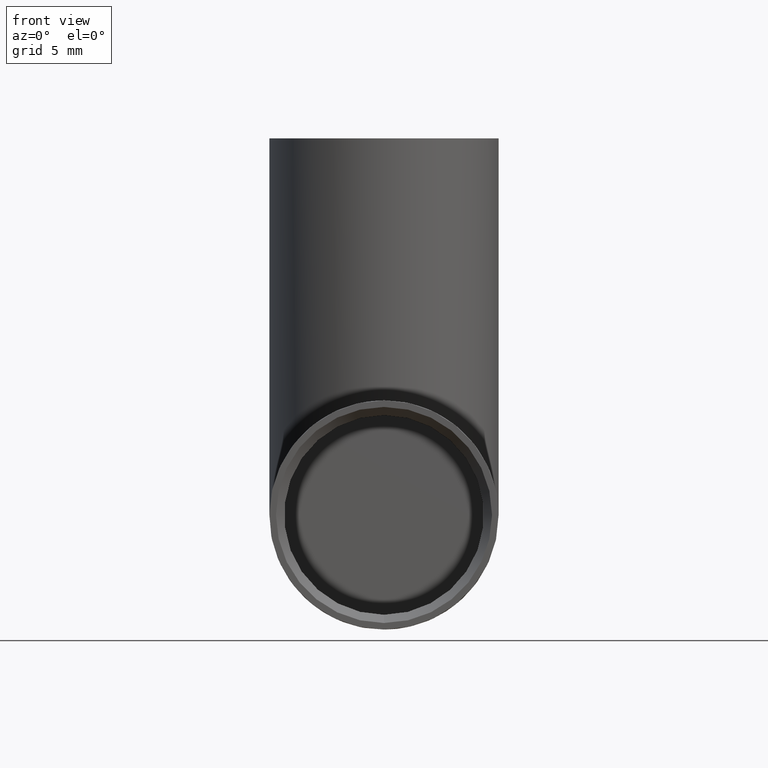
[diagram: clean part render]
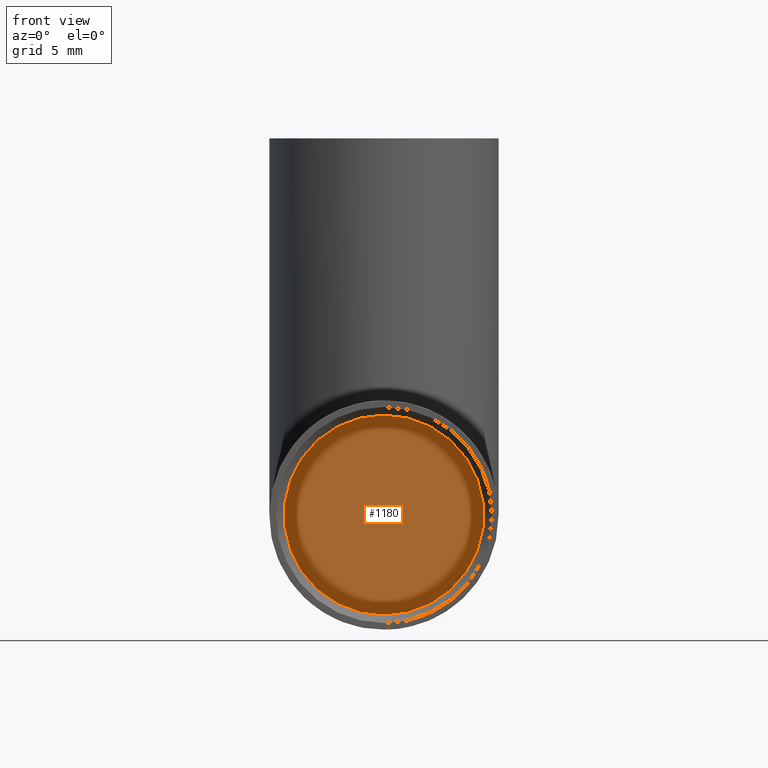
[diagram: same view with one face highlighted and labeled with its STEP entity id]
A machine part, front view. The second image highlights one B-rep face of the part: STEP entity #1180.
In plain terms, the highlighted planar face has unit normal (0, -1, 0).
Its self-contained STEP definition (entity closure, byte-faithful):
#994 = FACE_OUTER_BOUND ( 'NONE', #9421, .T. ) ;
#1180 = ADVANCED_FACE ( 'NONE', ( #994 ), #10447, .T. ) ;
#1355 = EDGE_CURVE ( 'NONE', #7873, #9371, #4284, .T. ) ;
#1817 = DIRECTION ( 'NONE',  ( 0.000000000000000000, 0.000000000000000000, -1.000000000000000000 ) ) ;
#2422 = CARTESIAN_POINT ( 'NONE',  ( 0.000000000000000000, 15.00000000000000000, -6.099999999999999645 ) ) ;
#2449 = AXIS2_PLACEMENT_3D ( 'NONE', #8710, #6770, #3102 ) ;
#3102 = DIRECTION ( 'NONE',  ( 0.000000000000000000, -0.000000000000000000, -1.000000000000000000 ) ) ;
#3828 = ORIENTED_EDGE ( 'NONE', *, *, #1355, .T. ) ;
#4145 = CIRCLE ( 'NONE', #10258, 6.099999999999999645 ) ;
#4284 = CIRCLE ( 'NONE', #6619, 6.099999999999999645 ) ;
#4500 = ORIENTED_EDGE ( 'NONE', *, *, #11766, .T. ) ;
#5635 = CARTESIAN_POINT ( 'NONE',  ( 0.000000000000000000, 15.00000000000000000, 0.000000000000000000 ) ) ;
#6619 = AXIS2_PLACEMENT_3D ( 'NONE', #11159, #12255, #1817 ) ;
#6770 = DIRECTION ( 'NONE',  ( 0.000000000000000000, -1.000000000000000000, 0.000000000000000000 ) ) ;
#7682 = DIRECTION ( 'NONE',  ( 0.000000000000000000, -1.000000000000000000, 0.000000000000000000 ) ) ;
#7873 = VERTEX_POINT ( 'NONE', #12104 ) ;
#8710 = CARTESIAN_POINT ( 'NONE',  ( 0.000000000000000000, 15.00000000000000000, 0.000000000000000000 ) ) ;
#9371 = VERTEX_POINT ( 'NONE', #2422 ) ;
#9421 = EDGE_LOOP ( 'NONE', ( #4500, #3828 ) ) ;
#10258 = AXIS2_PLACEMENT_3D ( 'NONE', #5635, #7682, #11481 ) ;
#10447 = PLANE ( 'NONE',  #2449 ) ;
#11159 = CARTESIAN_POINT ( 'NONE',  ( 0.000000000000000000, 15.00000000000000000, 0.000000000000000000 ) ) ;
#11481 = DIRECTION ( 'NONE',  ( 0.000000000000000000, 0.000000000000000000, -1.000000000000000000 ) ) ;
#11766 = EDGE_CURVE ( 'NONE', #9371, #7873, #4145, .T. ) ;
#12104 = CARTESIAN_POINT ( 'NONE',  ( 7.470345474798854293E-16, 15.00000000000000000, 6.099999999999999645 ) ) ;
#12255 = DIRECTION ( 'NONE',  ( 0.000000000000000000, -1.000000000000000000, 0.000000000000000000 ) ) ;